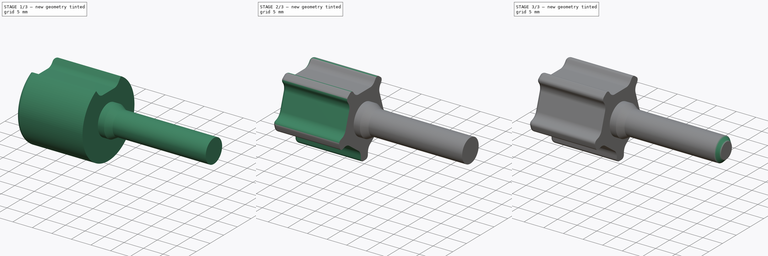
[diagram: build sequence overview — one tinted view per stage of 3, left to right]
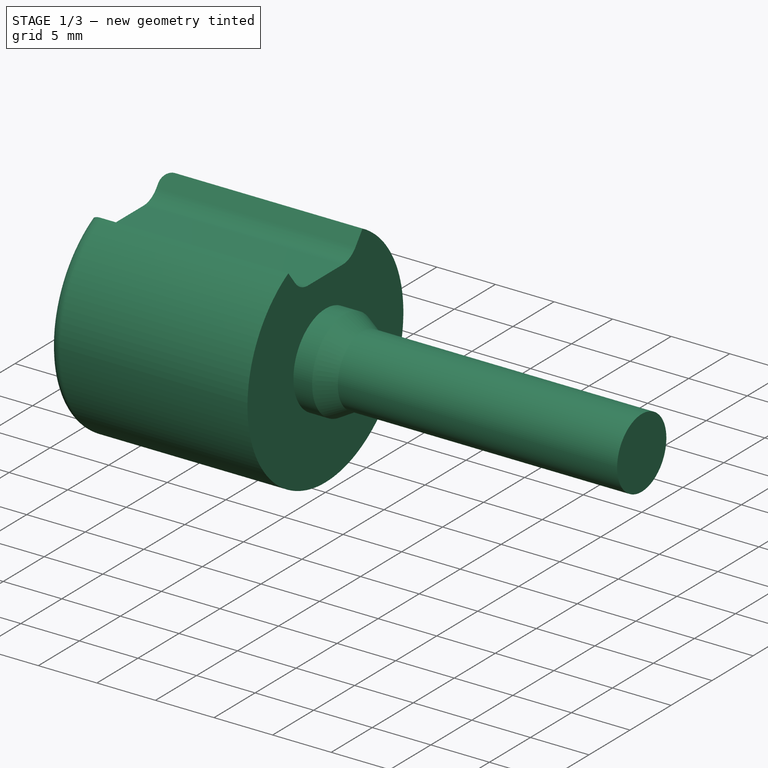
[diagram: stage 1 of 3 — iso view after this stage's code; geometry added in this stage tinted green]
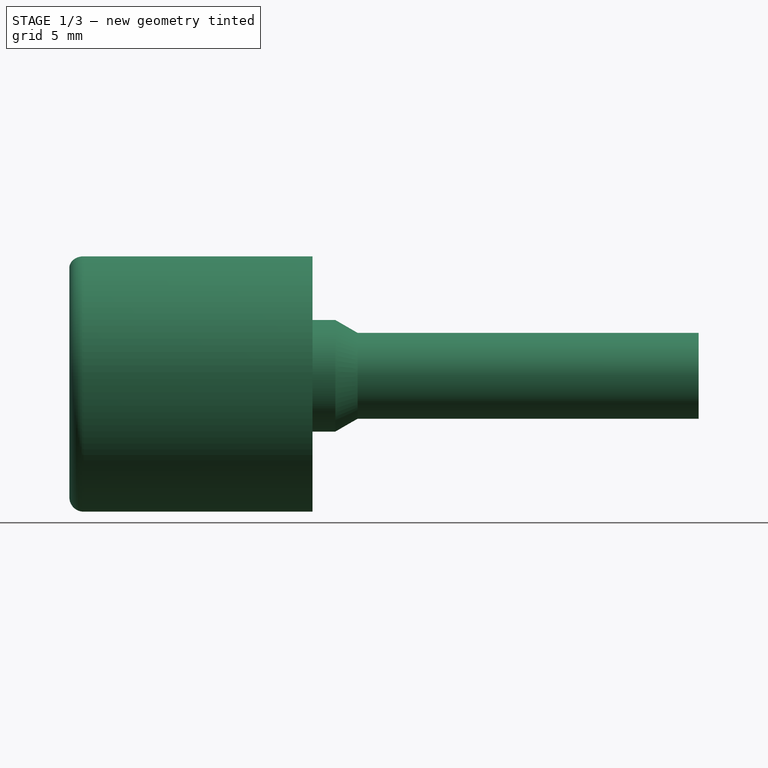
[diagram: stage 1 of 3 — front view after this stage's code; geometry added in this stage tinted green]
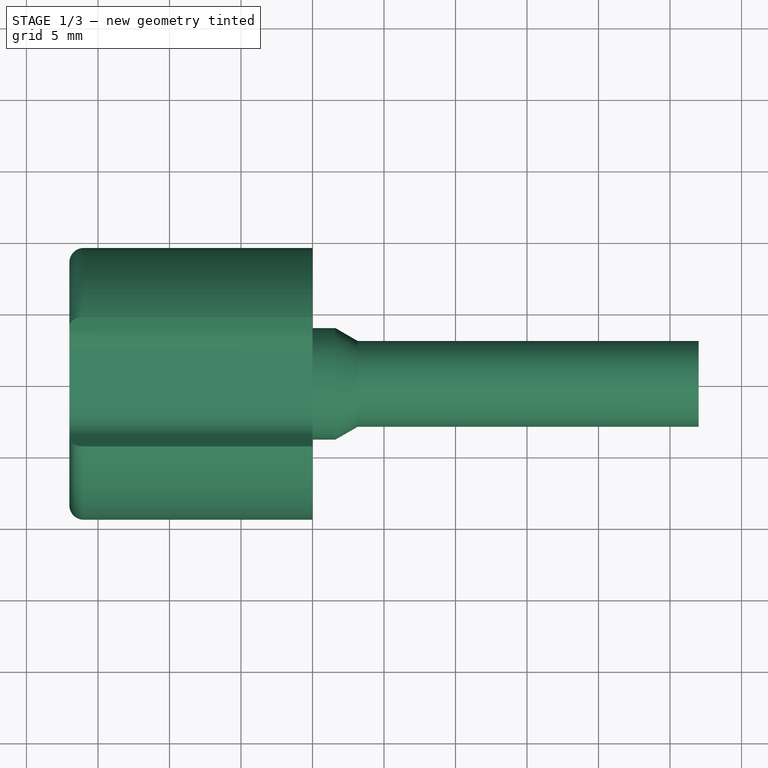
[diagram: stage 1 of 3 — top view after this stage's code; geometry added in this stage tinted green]
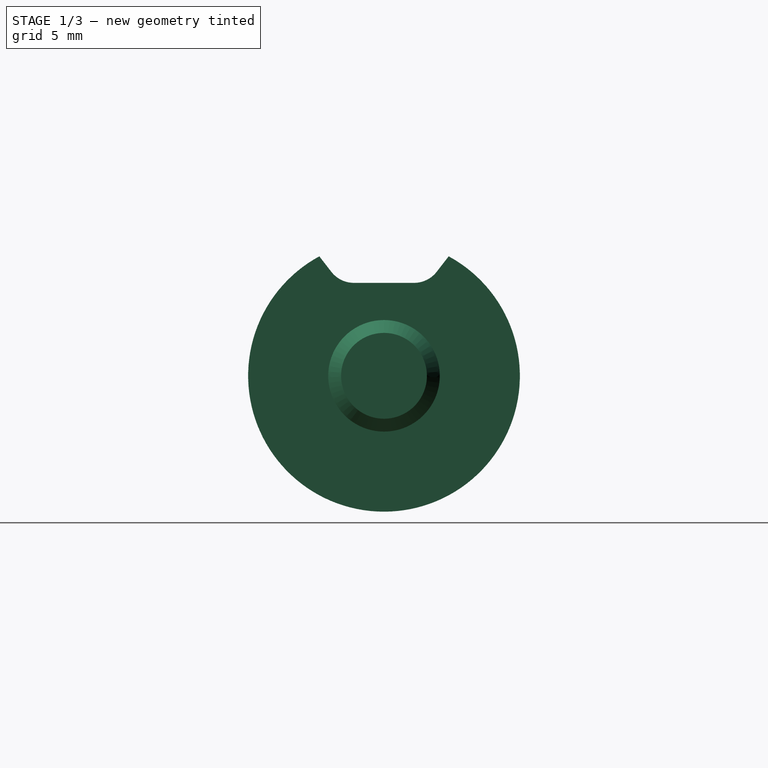
[diagram: stage 1 of 3 — right view after this stage's code; geometry added in this stage tinted green]
FCSTD DOCUMENT  (FreeCAD 0.20R28730 (Git))
Label: Tool Holder Screw
License: All rights reserved
LicenseURL: http://en.wikipedia.org/wiki/All_rights_reserved
objects: Sketcher::SketchObject×4, PartDesign::Pocket×2, PartDesign::Revolution×1, PartDesign::PolarPattern×1, PartDesign::Fillet×1, PartDesign::Pad×1, PartDesign::Chamfer×1, PartDesign::CoordinateSystem×1, PartDesign::Body×1
note: 19 computed .brp shape members not serialized (recipe doc carries the construction recipe); baked Part::Feature solids carry a one-line shape summary decoded from their .brp

FEATURE [Sketcher::SketchObject] Sketch
  FullyConstrained = true
  MapMode = 5
  Placement = pos=(0,0,0) rot=(1,0,0;1.5708rad)
  Support = -> [XZ_Plane]
  sketch-geometry (9):
    g0: LineSegment StartX=27 StartY=0 StartZ=0 EndX=27 EndY=3 EndZ=0
    g1: LineSegment StartX=27 StartY=3 StartZ=0 EndX=3.15885 EndY=3 EndZ=0
    g2: LineSegment StartX=3.15885 StartY=3 StartZ=0 EndX=1.6 EndY=3.9 EndZ=0
    g3: LineSegment StartX=1.6 StartY=3.9 StartZ=0 EndX=0 EndY=3.9 EndZ=0
    g4: LineSegment StartX=0 StartY=3.9 StartZ=0 EndX=0 EndY=9.5 EndZ=0
    g5: LineSegment StartX=0 StartY=9.5 StartZ=0 EndX=-16 EndY=9.5 EndZ=0
    g6: ArcOfCircle CenterX=-16 CenterY=8.5 CenterZ=0 NormalX=0 NormalY=0 NormalZ=1 AngleXU=0 Radius=1 StartAngle=1.5708 EndAngle=3.14159
    g7: LineSegment StartX=-17 StartY=8.5 StartZ=0 EndX=-17 EndY=0 EndZ=0
    g8: LineSegment StartX=-17 StartY=0 StartZ=0 EndX=27 EndY=0 EndZ=0
  constraints (26):
    c: PointOnObject(g0,g-1)
    c: Vertical(g0)
    c: Coincident(g0,g1)
    c: Horizontal(g1)
    c: Coincident(g1,g2)
    c: Coincident(g2,g3)
    c: PointOnObject(g3,g-2)
    c: Horizontal(g3)
    c: Coincident(g3,g4)
    c: PointOnObject(g4,g-2)
    c: Coincident(g4,g5)
    c: Horizontal(g5)
    c: Tangent(g5,g6) = -1.5708
    c: Tangent(g6,g7) = -1.5708
    c: Coincident(g7,g8)
    c: Coincident(g8,g0)
    c: Vertical(g7)
    c: Horizontal(g8)
    c: DistanceX(g8,g8) = 44
    c: DistanceY(g-1,g4) = 9.5
    c: Radius(g6) = 1
    c: DistanceX(g7,g-1) = 17
    c: DistanceY(g-1,g3) = 3.9
    c: DistanceY(g-1,g1) = 3
    c: DistanceX(g3,g3) = 1.6
    c: Angle(g1,g2) = 2.61799
FEATURE [PartDesign::Revolution] Revolution
  Angle = 360
  Axis = (1,0,0)
  Base = (0,0,0)
  Placement = pos=(0,0,0) rot=(1,0,0;1.5708rad)
  Profile = -> Sketch
  ReferenceAxis = -> X_Axis
  Refine = true
FEATURE [Sketcher::SketchObject] Sketch001
  FullyConstrained = true
  MapMode = 5
  Placement = pos=(0,0,0) rot=(0.57735,0.57735,0.57735;2.0944rad)
  Support = -> [YZ_Plane]
  sketch-geometry (9):
    g0: ArcOfCircle CenterX=-2.10432 CenterY=8.5 CenterZ=0 NormalX=0 NormalY=0 NormalZ=1 AngleXU=0 Radius=2 StartAngle=3.80077 EndAngle=4.71239
    g1: ArcOfCircle CenterX=2.10432 CenterY=8.5 CenterZ=0 NormalX=0 NormalY=0 NormalZ=1 AngleXU=0 Radius=2 StartAngle=4.71239 EndAngle=5.62401
    g2: LineSegment StartX=-2.10432 StartY=6.5 StartZ=0 EndX=2.10432 EndY=6.5 EndZ=0
    g3: LineSegment StartX=-3.68532 StartY=7.27507 StartZ=0 EndX=-29.3893 EndY=40.4508 EndZ=0
    g4: LineSegment StartX=-29.3893 StartY=40.4508 StartZ=0 EndX=29.3893 EndY=40.4508 EndZ=0
    g5: LineSegment StartX=3.68532 StartY=7.27507 StartZ=0 EndX=29.3893 EndY=40.4508 EndZ=0
    g6: LineSegment StartX=-29.3893 StartY=40.4508 StartZ=0 EndX=-3.6e-15 EndY=0 EndZ=0
    g7: LineSegment StartX=-3.6e-15 StartY=0 StartZ=0 EndX=29.3893 EndY=40.4508 EndZ=0
    g8: LineSegment StartX=-5.58396 StartY=7.68566 StartZ=0 EndX=-4.57269 EndY=8.42039 EndZ=0
  constraints (22):
    c: Tangent(g0,g2) = -1.5708
    c: Tangent(g2,g1) = -1.5708
    c: Equal(g0,g1)
    c: Tangent(g0,g3) = 1.5708
    c: Coincident(g3,g4)
    c: Tangent(g1,g5) = -1.5708
    c: Coincident(g4,g5)
    c: Symmetric(g3,g4,g-2)
    c: Symmetric(g0,g1,g-2)
    c: Radius(g0) = 2
    c: DistanceY(g-1,g1) = 6.5
    c: Coincident(g6,g-1)
    c: Coincident(g6,g7)
    c: Symmetric(g6,g7,g-2)
    c: Angle(g7,g6) = 1.25664
    c: Coincident(g7,g4)
    c: PointOnObject(g8,g6)
    c: PointOnObject(g8,g3)
    c: Perpendicular(g8,g6)
    c: Distance(g8) = 1.25
    c: Distance(g6) = 50
    c: Distance(g8,g6) = 9.5
FEATURE [PartDesign::Pocket] Pocket
  BaseFeature = -> Revolution
  Direction = (-1,2e-16,-3e-16)
  Length = 5
  Length2 = 5
  Placement = pos=(0,0,0) rot=(1,0,0;1.5708rad)
  Profile = -> Sketch001
  ReferenceAxis = -> Sketch001 [N_Axis]
  Refine = true
  Type = 1
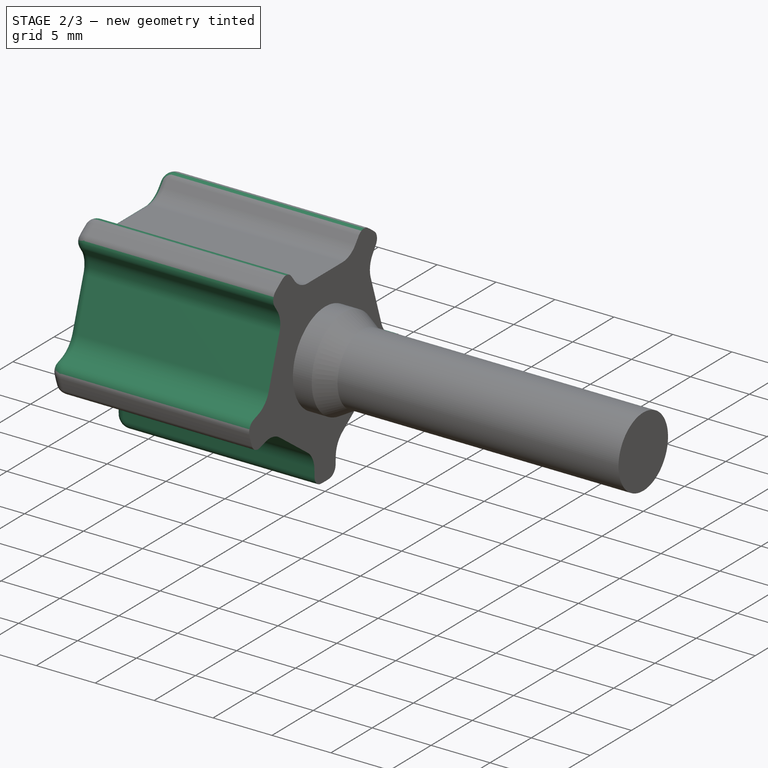
[diagram: stage 2 of 3 — iso view after this stage's code; geometry added in this stage tinted green]
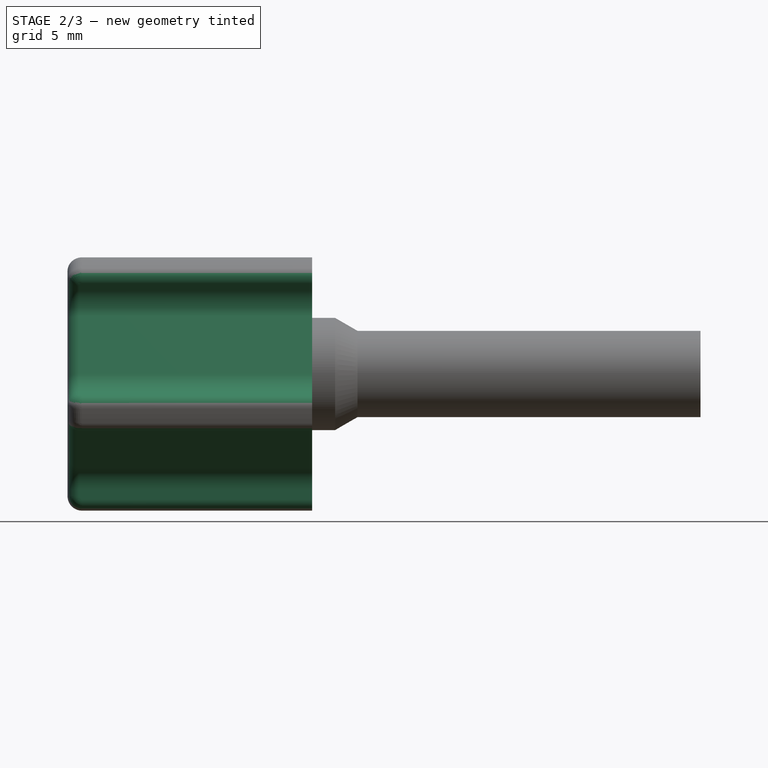
[diagram: stage 2 of 3 — front view after this stage's code; geometry added in this stage tinted green]
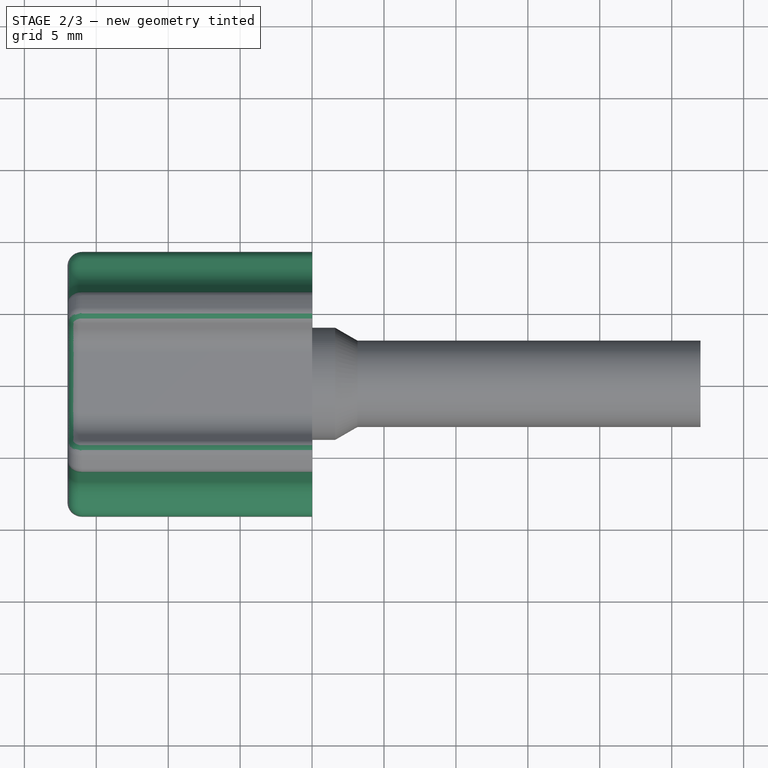
[diagram: stage 2 of 3 — top view after this stage's code; geometry added in this stage tinted green]
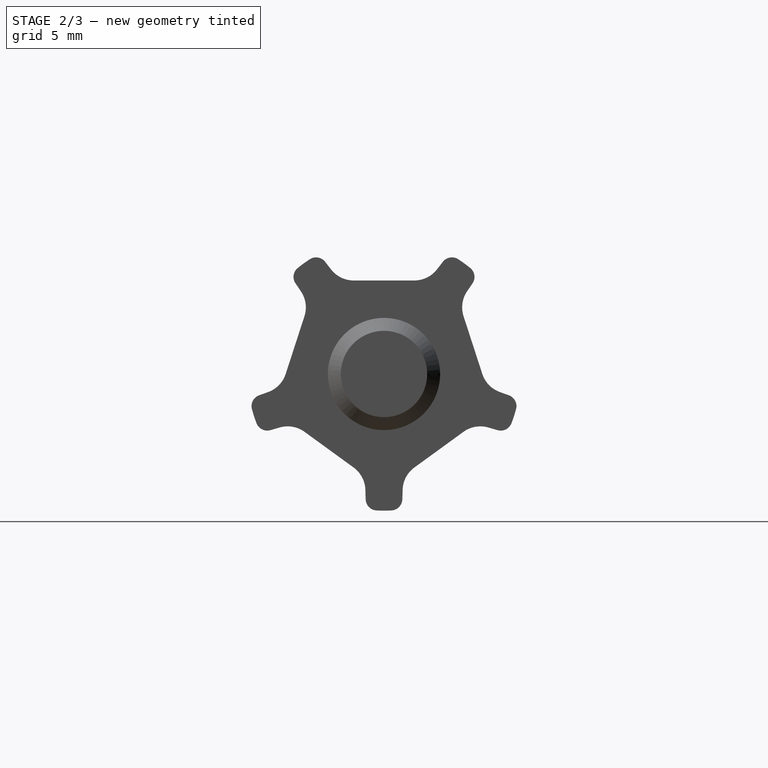
[diagram: stage 2 of 3 — right view after this stage's code; geometry added in this stage tinted green]
FEATURE [PartDesign::PolarPattern] PolarPattern
  Angle = 360
  Axis = -> Sketch001 [N_Axis]
  BaseFeature = -> Pocket
  Occurrences = 5
  Originals = -> [Pocket]
  Placement = pos=(0,0,0) rot=(1,0,0;1.5708rad)
  Refine = true
FEATURE [PartDesign::Fillet] Fillet
  Base = -> PolarPattern [Face37]
  BaseFeature = -> PolarPattern
  Placement = pos=(0,0,0) rot=(1,0,0;1.5708rad)
  Radius = 0.8
  Refine = true
  SupportTransform = false
  UseAllEdges = false
FEATURE [Sketcher::SketchObject] Sketch002
  AttachmentOffset = pos=(0,0,-3) rot=(0,0,1;0rad)
  FullyConstrained = true
  MapMode = 5
  Placement = pos=(-3,7e-16,-7e-16) rot=(0.57735,0.57735,0.57735;2.0944rad)
  Support = -> [YZ_Plane]
  sketch-geometry (1):
    g0: Circle CenterX=0 CenterY=0 CenterZ=0 NormalX=0 NormalY=0 NormalZ=1 AngleXU=0 Radius=4.5
  constraints (2):
    c: Coincident(g0,g-1)
    c: Diameter(g0) = 9
FEATURE [PartDesign::Pocket] Pocket001
  BaseFeature = -> Fillet
  Direction = (-1,2e-16,-3e-16)
  Length = 5
  Length2 = 5
  Placement = pos=(0,0,0) rot=(1,0,0;1.5708rad)
  Profile = -> Sketch002
  ReferenceAxis = -> Sketch002 [N_Axis]
  Refine = true
  Type = 1
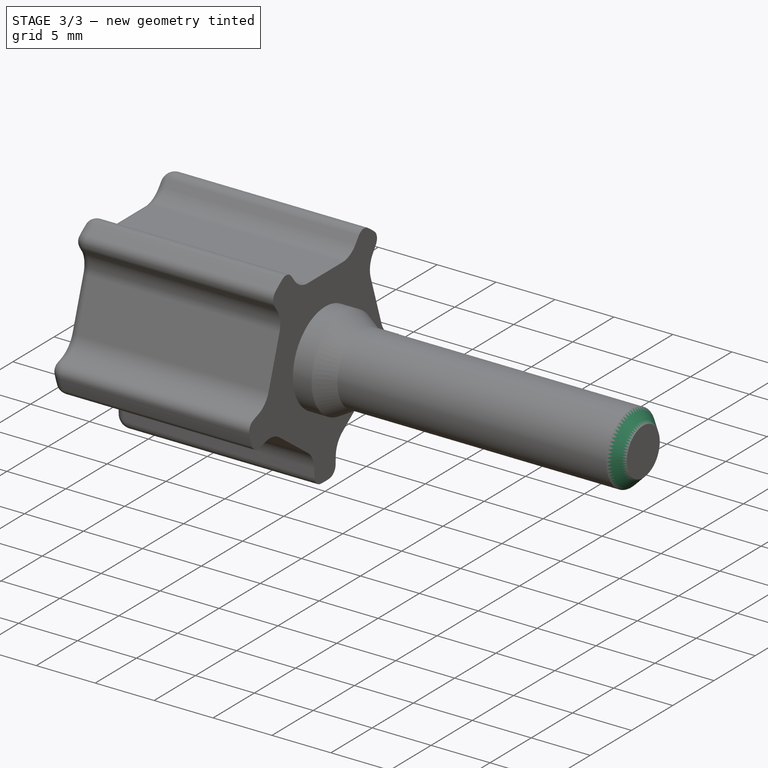
[diagram: stage 3 of 3 — iso view after this stage's code; geometry added in this stage tinted green]
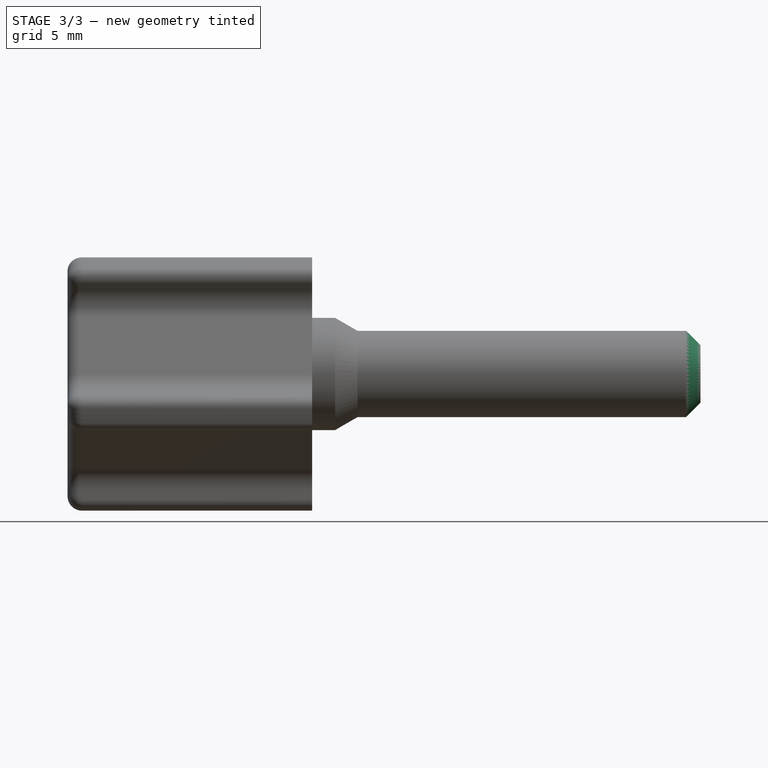
[diagram: stage 3 of 3 — front view after this stage's code; geometry added in this stage tinted green]
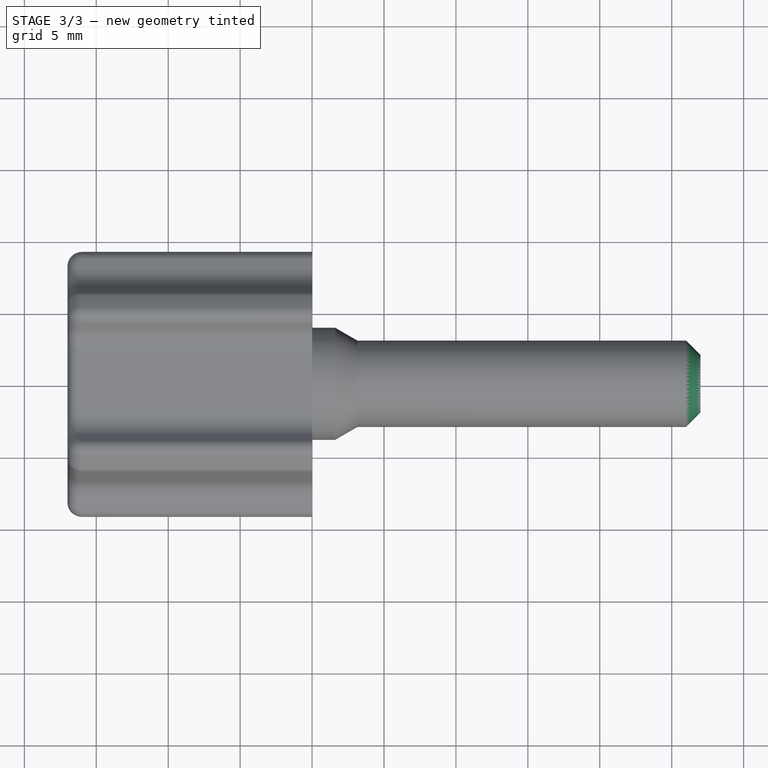
[diagram: stage 3 of 3 — top view after this stage's code; geometry added in this stage tinted green]
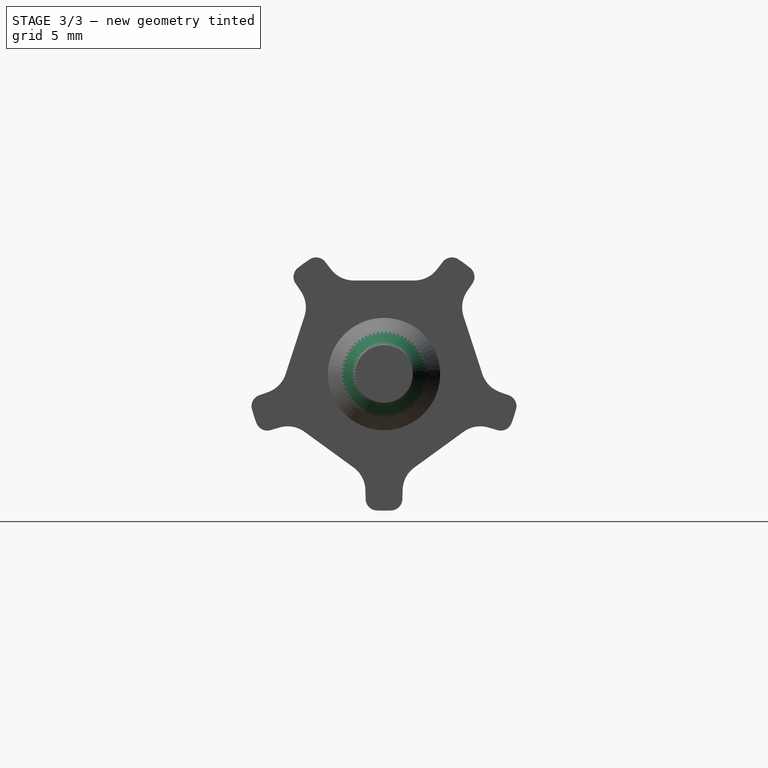
[diagram: stage 3 of 3 — right view after this stage's code; geometry added in this stage tinted green]
FEATURE [Sketcher::SketchObject] Sketch003
  AttachmentOffset = pos=(0,0,-3) rot=(0,0,1;0rad)
  FullyConstrained = true
  MapMode = 5
  Placement = pos=(-3,7e-16,-7e-16) rot=(0.57735,0.57735,0.57735;2.0944rad)
  Support = -> [YZ_Plane]
  sketch-geometry (8):
    g0: Circle CenterX=0 CenterY=0 CenterZ=0 NormalX=0 NormalY=0 NormalZ=1 AngleXU=0 Radius=4
    g1: LineSegment StartX=0 StartY=-2.88675 StartZ=0 EndX=2.5 EndY=-1.44338 EndZ=0
    g2: LineSegment StartX=2.5 StartY=-1.44338 StartZ=0 EndX=2.5 EndY=1.44338 EndZ=0
    g3: LineSegment StartX=2.5 StartY=1.44338 StartZ=0 EndX=-2.429e-13 EndY=2.88675 EndZ=0
    g4: LineSegment StartX=-2.429e-13 StartY=2.88675 StartZ=0 EndX=-2.5 EndY=1.44338 EndZ=0
    g5: LineSegment StartX=-2.5 StartY=1.44338 StartZ=0 EndX=-2.5 EndY=-1.44338 EndZ=0
    g6: LineSegment StartX=-2.5 StartY=-1.44338 StartZ=0 EndX=0 EndY=-2.88675 EndZ=0
    g7: Circle CenterX=0 CenterY=0 CenterZ=0 NormalX=0 NormalY=0 NormalZ=1 AngleXU=0 Radius=2.88675
  constraints (18):
    c: Coincident(g0,g-1)
    c: Diameter(g0) = 8
    c: Coincident(g1,g2)
    c: Coincident(g2,g3)
    c: Coincident(g3,g4)
    c: Coincident(g4,g5)
    c: Coincident(g5,g6)
    c: Coincident(g6,g1)
    c: Equal(g1, g2-g6) x5
    c: PointOnObject(g1,g7)
    c: PointOnObject(g2,g7)
    c: PointOnObject(g3,g7)
    c: PointOnObject(g4,g7)
    c: PointOnObject(g5,g7)
    c: PointOnObject(g6,g7)
    c: Coincident(g7,g0)
    c: PointOnObject(g6,g-2)
    c: DistanceX(g4,g2) = 5
FEATURE [PartDesign::Pad] Pad
  BaseFeature = -> Pocket001
  Direction = (1,-2e-16,3e-16)
  Length = 6
  Length2 = 10
  Placement = pos=(0,0,0) rot=(1,0,0;1.5708rad)
  Profile = -> Sketch003
  ReferenceAxis = -> Sketch003 [N_Axis]
  Refine = true
  Reversed = true
  Type = 0
FEATURE [PartDesign::Chamfer] Chamfer
  Angle = 45
  Base = -> Pad [Edge207]
  BaseFeature = -> Pad
  ChamferType = 0
  FlipDirection = false
  Placement = pos=(0,0,0) rot=(1,0,0;1.5708rad)
  Refine = true
  Size = 1
  Size2 = 1
  SupportTransform = false
  UseAllEdges = false
FEATURE [PartDesign::CoordinateSystem] LCS_1  label="LCS_Tool_Holder_Screw"
  AttacherType = Attacher::AttachEngine3D
  MapMode = 11
  Placement = pos=(0,0,4e-16) rot=(0.57735,-0.57735,0.57735;4.18879rad)
  Support = -> [Chamfer]
FEATURE [PartDesign::Body] Body  label="Tool_Holder_Screw"
  Group = -> [Sketch,Revolution,Sketch001,Pocket,PolarPattern,Fillet,Sketch002,Pocket001,Sketch003,Pad,Chamfer,LCS_1]
  Origin = -> Origin
  Tip = -> Chamfer
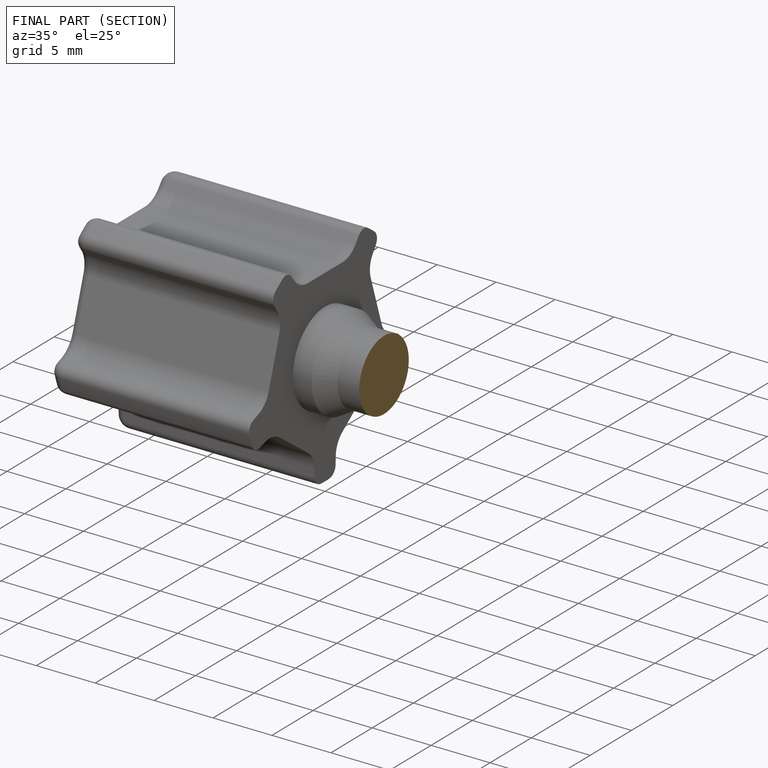
[diagram: finished part — half-section view (interior)]
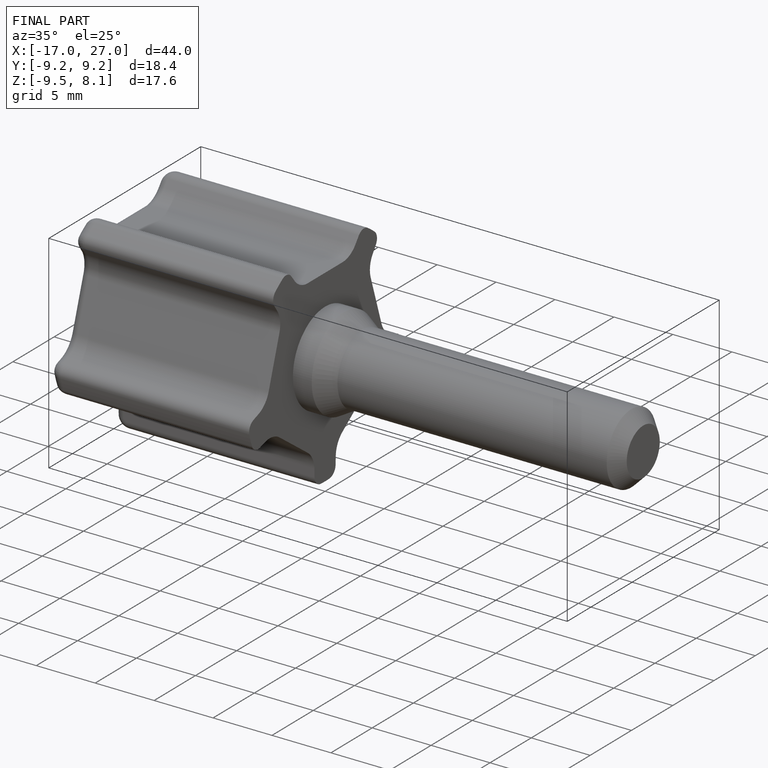
[diagram: finished part — iso view with bounding-box wireframe]
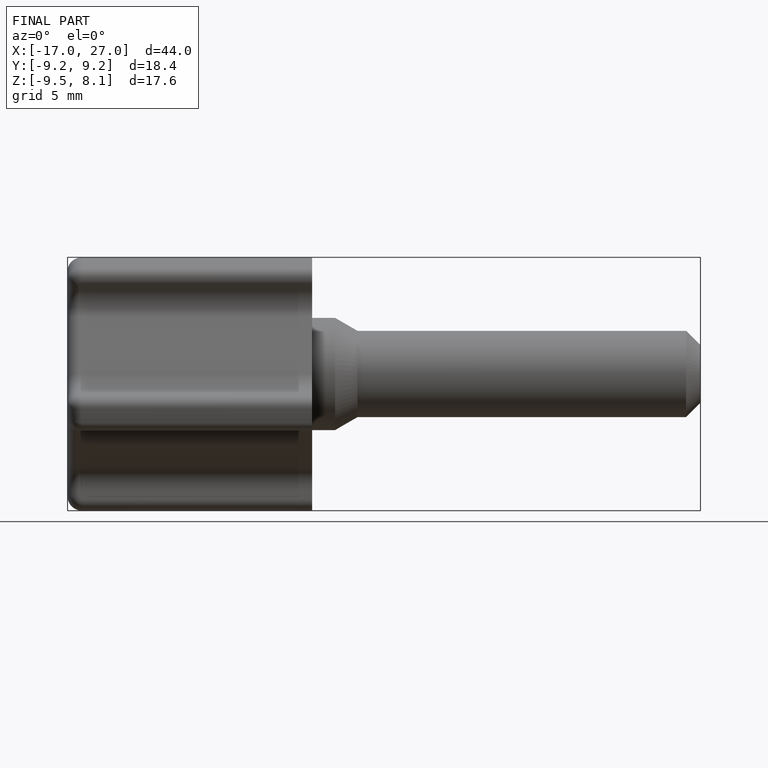
[diagram: finished part — front view with bounding-box wireframe]
